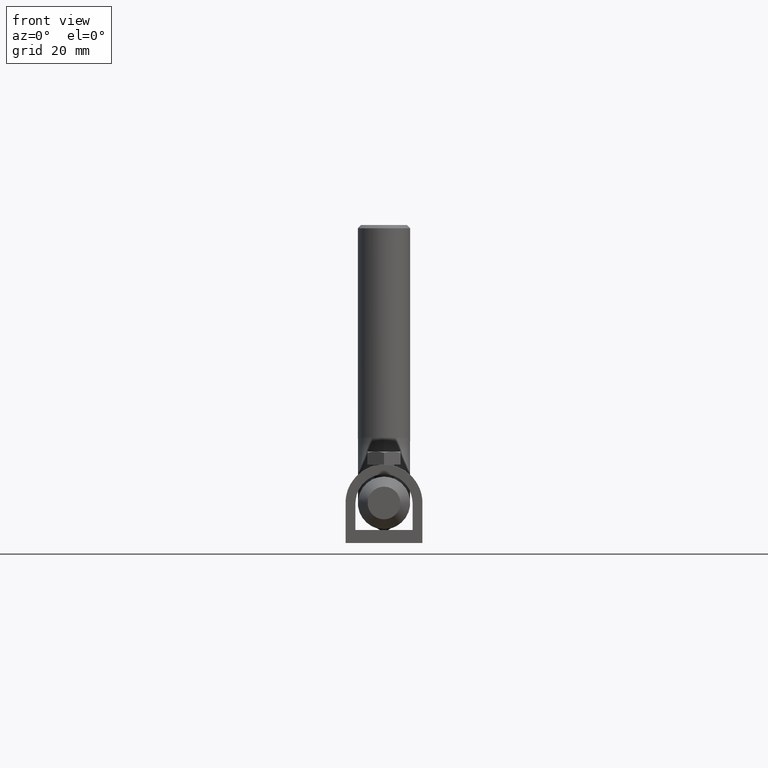
[diagram: clean part render]
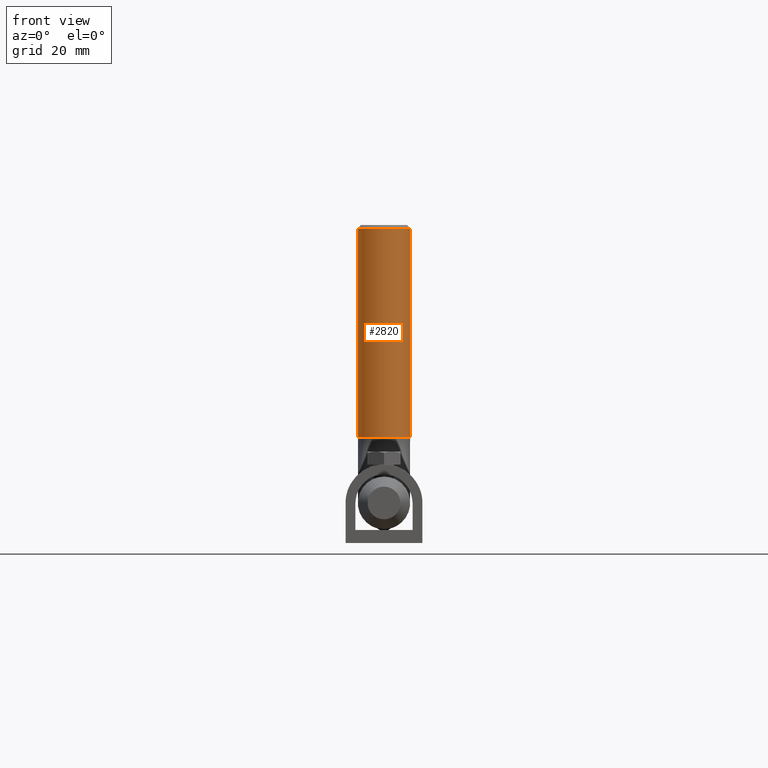
[diagram: same view with one face highlighted and labeled with its STEP entity id]
A machine part, front view. The second image highlights one B-rep face of the part: STEP entity #2820.
In plain terms, the highlighted cylindrical surface (bore or boss wall) has radius 8 mm, axis along (0, 0, 1).
Its self-contained STEP definition (entity closure, byte-faithful):
#419 = DIRECTION ( 'NONE',  ( 1.000000000000000000, 0.000000000000000000, 0.000000000000000000 ) ) ;
#570 = ORIENTED_EDGE ( 'NONE', *, *, #7791, .T. ) ;
#2577 = ORIENTED_EDGE ( 'NONE', *, *, #7567, .T. ) ;
#2820 = ADVANCED_FACE ( 'NONE', ( #4729, #11586 ), #13605, .T. ) ;
#4729 = FACE_OUTER_BOUND ( 'NONE', #13014, .T. ) ;
#4877 = AXIS2_PLACEMENT_3D ( 'NONE', #5734, #13548, #13372 ) ;
#5034 = AXIS2_PLACEMENT_3D ( 'NONE', #5814, #14647, #419 ) ;
#5088 = VERTEX_POINT ( 'NONE', #16211 ) ;
#5496 = VERTEX_POINT ( 'NONE', #14930 ) ;
#5734 = CARTESIAN_POINT ( 'NONE',  ( 0.000000000000000000, 192.0000000000000000, 20.00000000000000355 ) ) ;
#5814 = CARTESIAN_POINT ( 'NONE',  ( 0.000000000000000000, 192.0000000000000000, 83.99999999999998579 ) ) ;
#6307 = EDGE_LOOP ( 'NONE', ( #570 ) ) ;
#6664 = AXIS2_PLACEMENT_3D ( 'NONE', #7574, #10080, #8821 ) ;
#7567 = EDGE_CURVE ( 'NONE', #5496, #5496, #11199, .T. ) ;
#7574 = CARTESIAN_POINT ( 'NONE',  ( 0.000000000000000000, 192.0000000000000284, 20.00000000000000355 ) ) ;
#7791 = EDGE_CURVE ( 'NONE', #5088, #5088, #15398, .T. ) ;
#8821 = DIRECTION ( 'NONE',  ( 0.000000000000000000, -1.000000000000000000, 0.000000000000000000 ) ) ;
#10080 = DIRECTION ( 'NONE',  ( 0.000000000000000000, -1.734723475976808080E-16, 1.000000000000000000 ) ) ;
#11199 = CIRCLE ( 'NONE', #5034, 8.000000000000000000 ) ;
#11586 = FACE_OUTER_BOUND ( 'NONE', #6307, .T. ) ;
#13014 = EDGE_LOOP ( 'NONE', ( #2577 ) ) ;
#13372 = DIRECTION ( 'NONE',  ( 1.000000000000000000, 0.000000000000000000, 0.000000000000000000 ) ) ;
#13548 = DIRECTION ( 'NONE',  ( 0.000000000000000000, 0.000000000000000000, 1.000000000000000000 ) ) ;
#13605 = CYLINDRICAL_SURFACE ( 'NONE', #4877, 8.000000000000000000 ) ;
#14647 = DIRECTION ( 'NONE',  ( 0.000000000000000000, 0.000000000000000000, -1.000000000000000000 ) ) ;
#14930 = CARTESIAN_POINT ( 'NONE',  ( 8.000000000000000000, 192.0000000000000000, 83.99999999999998579 ) ) ;
#15398 = CIRCLE ( 'NONE', #6664, 8.000000000000007105 ) ;
#16211 = CARTESIAN_POINT ( 'NONE',  ( 0.000000000000000000, 184.0000000000000284, 20.00000000000000355 ) ) ;